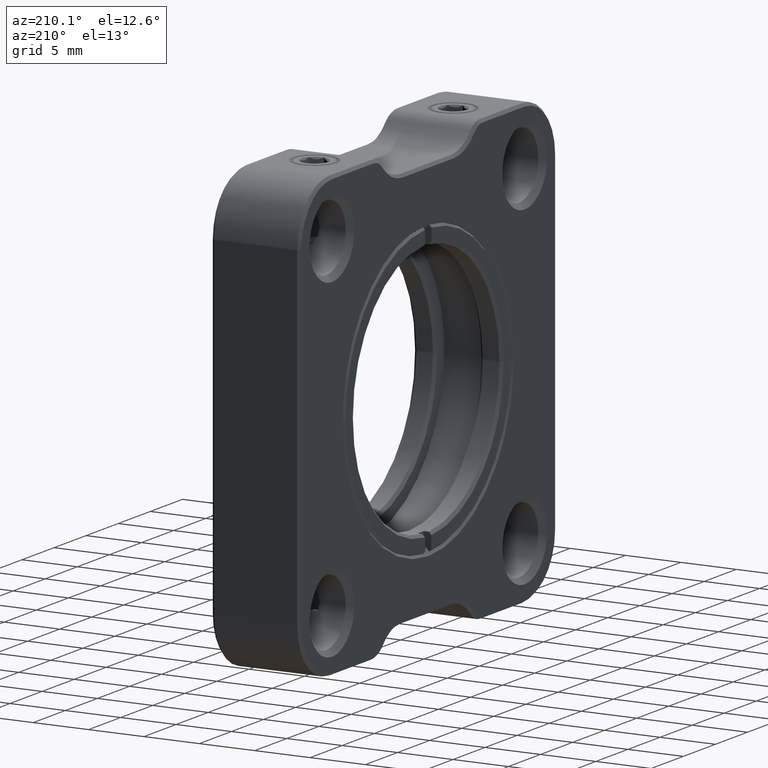
[diagram: clean part render]
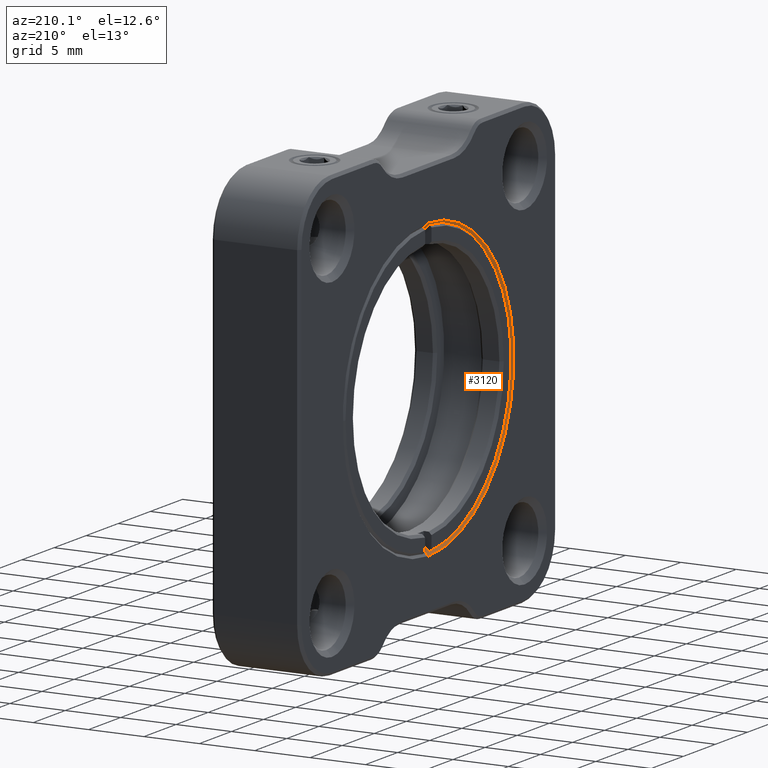
[diagram: same view with one face highlighted and labeled with its STEP entity id]
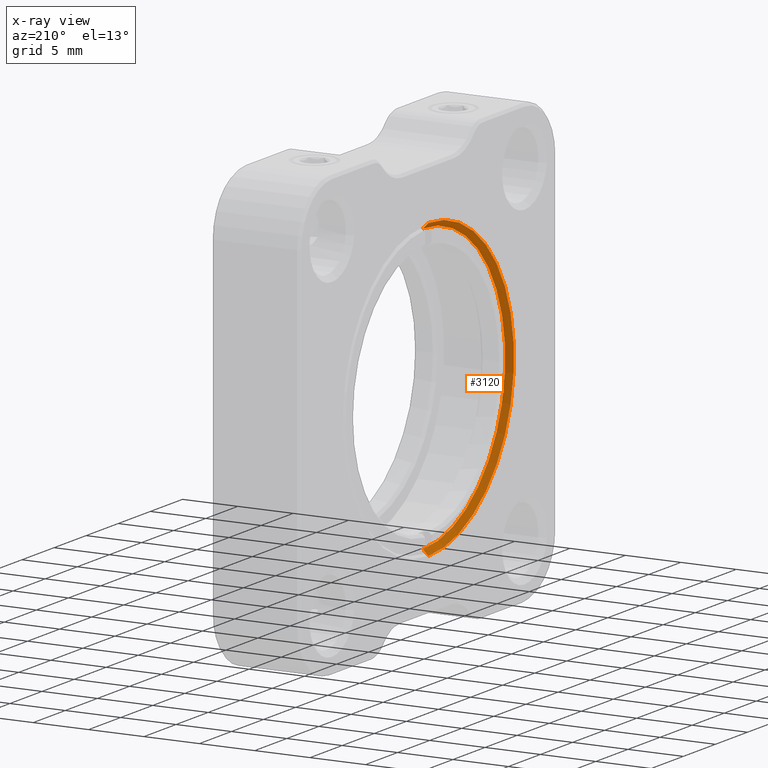
[diagram: x-ray of the same camera — body ghosted, the highlighted face saturated]
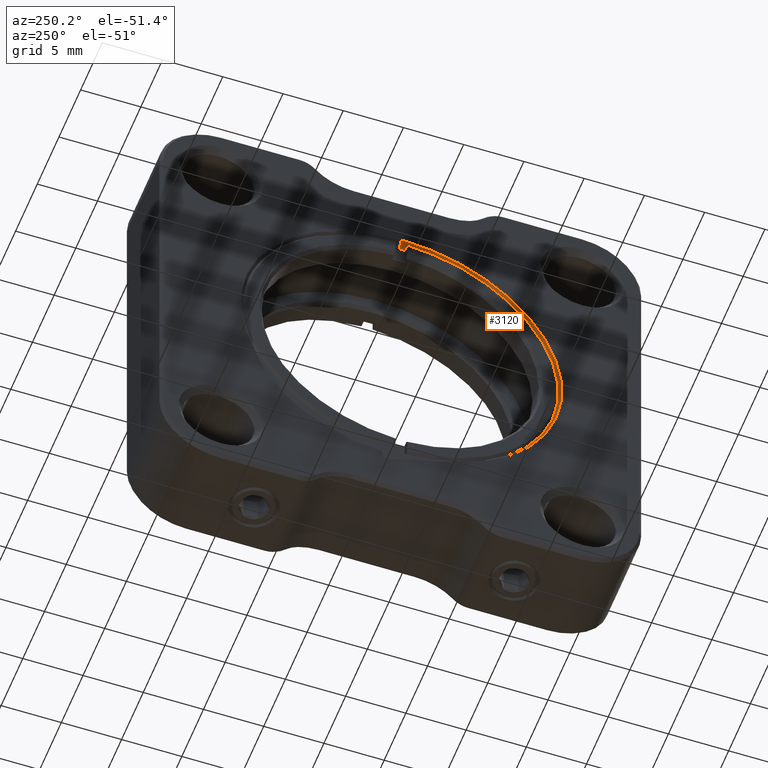
[diagram: same view with one face highlighted and labeled with its STEP entity id]
A machine part, auxiliary view. The second image highlights one B-rep face of the part: STEP entity #3120.
The next image is the same camera in x-ray: the body ghosted, the highlighted face saturated — about 0% of this face is hidden behind the body in this view.
A second angle (auxiliary view) of the same face is appended — the face is thin or edge-on in the first view.
In plain terms, the highlighted conical surface has half-angle 45 deg.
Its self-contained STEP definition (entity closure, byte-faithful):
#22 = CARTESIAN_POINT ( 'NONE',  ( -18.70960063692994879, 2.109301223409109749, 40.00000000000001421 ) ) ;
#297 = CARTESIAN_POINT ( 'NONE',  ( -18.70960063692994879, 2.109301223409109749, 53.32700000000001239 ) ) ;
#606 = LINE ( 'NONE', #8660, #6207 ) ;
#666 = CONICAL_SURFACE ( 'NONE', #5351, 13.32699999999999818, 0.7853981633974500554 ) ;
#687 = EDGE_CURVE ( 'NONE', #5485, #3183, #7738, .T. ) ;
#949 = DIRECTION ( 'NONE',  ( -1.000000000000000000, -0.000000000000000000, -0.000000000000000000 ) ) ;
#1127 = FACE_OUTER_BOUND ( 'NONE', #7491, .T. ) ;
#1179 = VECTOR ( 'NONE', #9185, 1000.000000000000000 ) ;
#1571 = EDGE_CURVE ( 'NONE', #7297, #8059, #6612, .T. ) ;
#1894 = ORIENTED_EDGE ( 'NONE', *, *, #3914, .T. ) ;
#2545 = DIRECTION ( 'NONE',  ( 0.000000000000000000, 0.000000000000000000, -1.000000000000000000 ) ) ;
#3120 = ADVANCED_FACE ( 'NONE', ( #1127 ), #666, .F. ) ;
#3147 = AXIS2_PLACEMENT_3D ( 'NONE', #4793, #949, #2545 ) ;
#3183 = VERTEX_POINT ( 'NONE', #8738 ) ;
#3281 = LINE ( 'NONE', #6146, #1179 ) ;
#3394 = CARTESIAN_POINT ( 'NONE',  ( -18.70960063692994879, 2.109301223409109749, 40.00000000000001421 ) ) ;
#3589 = AXIS2_PLACEMENT_3D ( 'NONE', #22, #9475, #7908 ) ;
#3702 = CARTESIAN_POINT ( 'NONE',  ( -18.70960063692994879, 2.109301223409111525, 26.67300000000001603 ) ) ;
#3852 = ORIENTED_EDGE ( 'NONE', *, *, #687, .F. ) ;
#3914 = EDGE_CURVE ( 'NONE', #5485, #8059, #606, .T. ) ;
#4793 = CARTESIAN_POINT ( 'NONE',  ( -18.20960063692995234, 2.109301223409109749, 40.00000000000001421 ) ) ;
#5351 = AXIS2_PLACEMENT_3D ( 'NONE', #3394, #9537, #7226 ) ;
#5485 = VERTEX_POINT ( 'NONE', #7422 ) ;
#5919 = EDGE_CURVE ( 'NONE', #3183, #7297, #3281, .T. ) ;
#6146 = CARTESIAN_POINT ( 'NONE',  ( -18.70960063692994879, 2.109301223409109749, 53.32700000000001239 ) ) ;
#6207 = VECTOR ( 'NONE', #7117, 1000.000000000000000 ) ;
#6612 = CIRCLE ( 'NONE', #3589, 13.32699999999999818 ) ;
#6761 = ORIENTED_EDGE ( 'NONE', *, *, #1571, .F. ) ;
#7117 = DIRECTION ( 'NONE',  ( -0.7071067811865463515, 8.659560562354950115E-17, -0.7071067811865487940 ) ) ;
#7226 = DIRECTION ( 'NONE',  ( 0.000000000000000000, 0.000000000000000000, 1.000000000000000000 ) ) ;
#7297 = VERTEX_POINT ( 'NONE', #297 ) ;
#7422 = CARTESIAN_POINT ( 'NONE',  ( -18.20960063692995234, 2.109301223409111525, 27.17300000000001603 ) ) ;
#7491 = EDGE_LOOP ( 'NONE', ( #3852, #1894, #6761, #8043 ) ) ;
#7738 = CIRCLE ( 'NONE', #3147, 12.82699999999999818 ) ;
#7908 = DIRECTION ( 'NONE',  ( 0.000000000000000000, 0.000000000000000000, -1.000000000000000000 ) ) ;
#8043 = ORIENTED_EDGE ( 'NONE', *, *, #5919, .F. ) ;
#8059 = VERTEX_POINT ( 'NONE', #3702 ) ;
#8660 = CARTESIAN_POINT ( 'NONE',  ( -18.70960063692994879, 2.109301223409111525, 26.67300000000001603 ) ) ;
#8738 = CARTESIAN_POINT ( 'NONE',  ( -18.20960063692995234, 2.109301223409109749, 52.82700000000001239 ) ) ;
#9185 = DIRECTION ( 'NONE',  ( -0.7071067811865463515, 0.000000000000000000, 0.7071067811865487940 ) ) ;
#9475 = DIRECTION ( 'NONE',  ( 1.000000000000000000, 0.000000000000000000, 0.000000000000000000 ) ) ;
#9537 = DIRECTION ( 'NONE',  ( -1.000000000000000000, -0.000000000000000000, -0.000000000000000000 ) ) ;